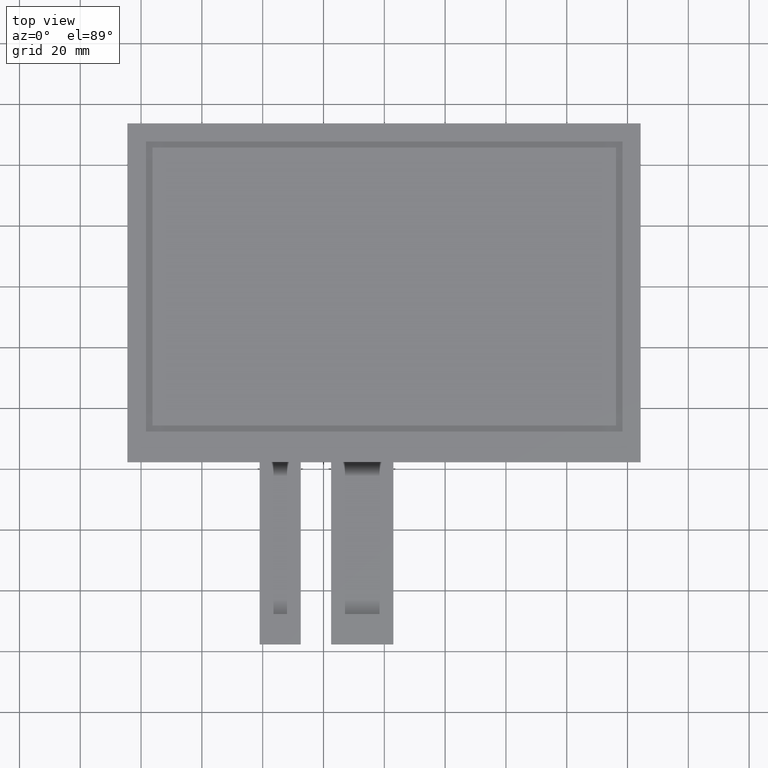
[diagram: clean part render]
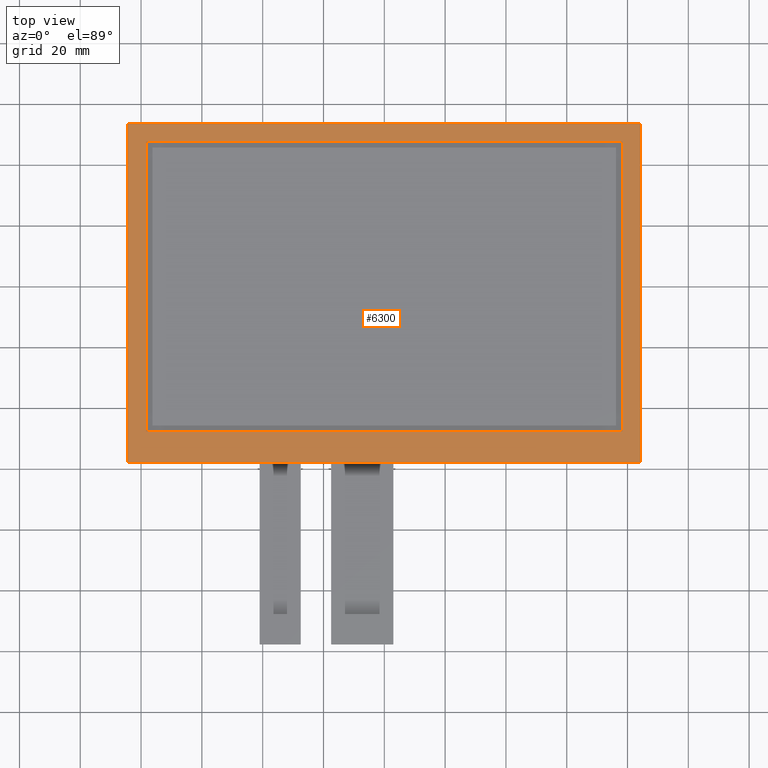
[diagram: same view with one face highlighted and labeled with its STEP entity id]
A machine part, top view. The second image highlights one B-rep face of the part: STEP entity #6300.
In plain terms, the highlighted planar face has unit normal (0, 0, 1).
Its self-contained STEP definition (entity closure, byte-faithful):
#68=FACE_BOUND('',#968,.T.);
#362=PLANE('',#6630);
#664=FACE_OUTER_BOUND('',#967,.T.);
#967=EDGE_LOOP('',(#5961,#5962,#5963,#5964));
#968=EDGE_LOOP('',(#5965,#5966,#5967,#5968));
#1833=LINE('',#9873,#2713);
#1837=LINE('',#9881,#2717);
#1840=LINE('',#9887,#2720);
#1843=LINE('',#9892,#2723);
#1845=LINE('',#9898,#2725);
#1846=LINE('',#9900,#2726);
#1847=LINE('',#9902,#2727);
#1848=LINE('',#9903,#2728);
#2713=VECTOR('',#8093,10.);
#2717=VECTOR('',#8099,10.);
#2720=VECTOR('',#8104,10.);
#2723=VECTOR('',#8109,10.);
#2725=VECTOR('',#8115,10.);
#2726=VECTOR('',#8116,10.);
#2727=VECTOR('',#8117,10.);
#2728=VECTOR('',#8118,10.);
#3321=VERTEX_POINT('',#9871);
#3322=VERTEX_POINT('',#9872);
#3325=VERTEX_POINT('',#9880);
#3327=VERTEX_POINT('',#9886);
#3329=VERTEX_POINT('',#9896);
#3330=VERTEX_POINT('',#9897);
#3331=VERTEX_POINT('',#9899);
#3332=VERTEX_POINT('',#9901);
#4201=EDGE_CURVE('',#3321,#3322,#1833,.T.);
#4205=EDGE_CURVE('',#3325,#3321,#1837,.T.);
#4208=EDGE_CURVE('',#3327,#3325,#1840,.T.);
#4211=EDGE_CURVE('',#3322,#3327,#1843,.T.);
#4213=EDGE_CURVE('',#3329,#3330,#1845,.T.);
#4214=EDGE_CURVE('',#3330,#3331,#1846,.T.);
#4215=EDGE_CURVE('',#3331,#3332,#1847,.T.);
#4216=EDGE_CURVE('',#3332,#3329,#1848,.T.);
#5961=ORIENTED_EDGE('',*,*,#4213,.T.);
#5962=ORIENTED_EDGE('',*,*,#4214,.T.);
#5963=ORIENTED_EDGE('',*,*,#4215,.T.);
#5964=ORIENTED_EDGE('',*,*,#4216,.T.);
#5965=ORIENTED_EDGE('',*,*,#4201,.T.);
#5966=ORIENTED_EDGE('',*,*,#4211,.T.);
#5967=ORIENTED_EDGE('',*,*,#4208,.T.);
#5968=ORIENTED_EDGE('',*,*,#4205,.T.);
#6300=ADVANCED_FACE('',(#664,#68),#362,.T.);
#6630=AXIS2_PLACEMENT_3D('',#9895,#8113,#8114);
#8093=DIRECTION('',(-1.86298567320425E-16,1.,0.));
#8099=DIRECTION('',(-1.,-1.13360359885147E-16,0.));
#8104=DIRECTION('',(0.,-1.,0.));
#8109=DIRECTION('',(1.,0.,0.));
#8113=DIRECTION('center_axis',(0.,0.,1.));
#8114=DIRECTION('ref_axis',(1.,0.,0.));
#8115=DIRECTION('',(-1.,0.,0.));
#8116=DIRECTION('',(3.18915051956957E-16,-1.,0.));
#8117=DIRECTION('',(1.,1.05234409917076E-16,0.));
#8118=DIRECTION('',(-1.59457525978478E-16,1.,0.));
#9871=CARTESIAN_POINT('',(-78.4,-47.72,0.));
#9872=CARTESIAN_POINT('',(-78.4,47.63,0.));
#9873=CARTESIAN_POINT('',(-78.4,-24.87,0.));
#9880=CARTESIAN_POINT('',(78.3,-47.72,0.));
#9881=CARTESIAN_POINT('',(39.1,-47.72,0.));
#9886=CARTESIAN_POINT('',(78.3,47.63,0.));
#9887=CARTESIAN_POINT('',(78.3,22.805,0.));
#9892=CARTESIAN_POINT('',(-39.25,47.63,0.));
#9895=CARTESIAN_POINT('Origin',(-0.100000000000025,-2.02000000000001,0.));
#9896=CARTESIAN_POINT('',(84.3,53.68,0.));
#9897=CARTESIAN_POINT('',(-84.5,53.68,0.));
#9898=CARTESIAN_POINT('',(84.3,53.68,0.));
#9899=CARTESIAN_POINT('',(-84.5,-57.72,0.));
#9900=CARTESIAN_POINT('',(-84.5,53.68,0.));
#9901=CARTESIAN_POINT('',(84.3,-57.72,0.));
#9902=CARTESIAN_POINT('',(-84.5,-57.72,0.));
#9903=CARTESIAN_POINT('',(84.3,-57.72,0.));